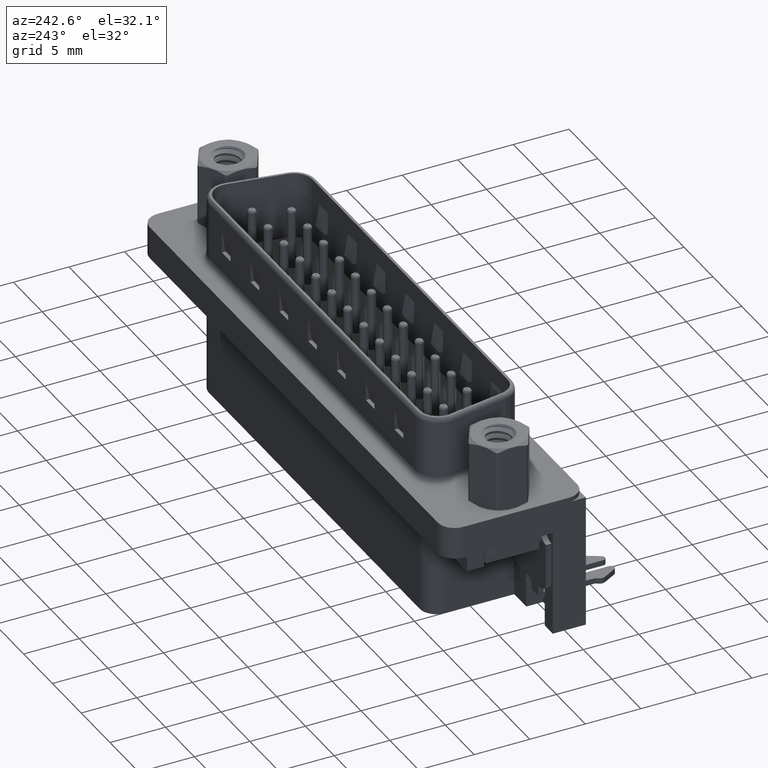
[diagram: clean part render]
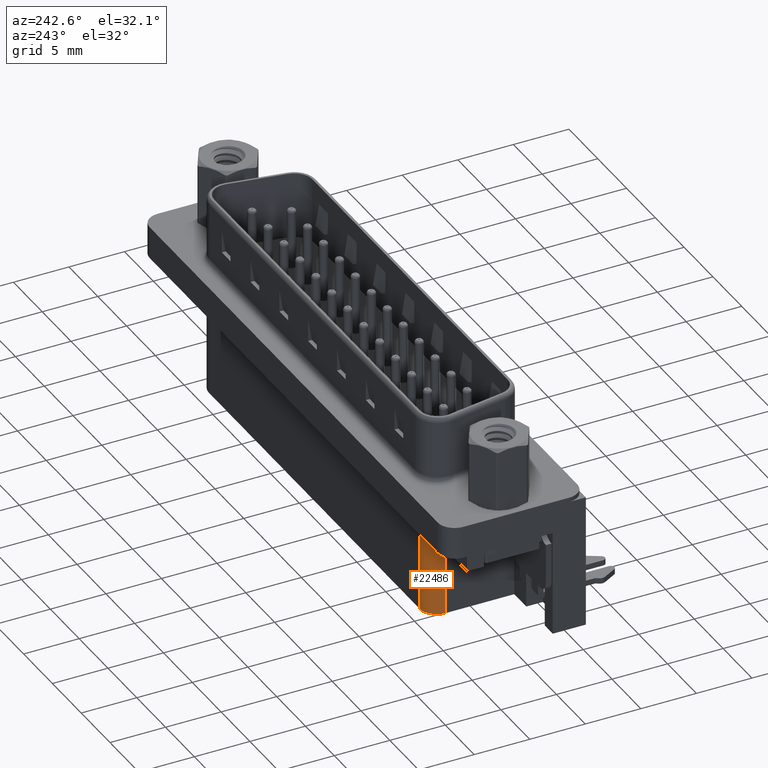
[diagram: same view with one face highlighted and labeled with its STEP entity id]
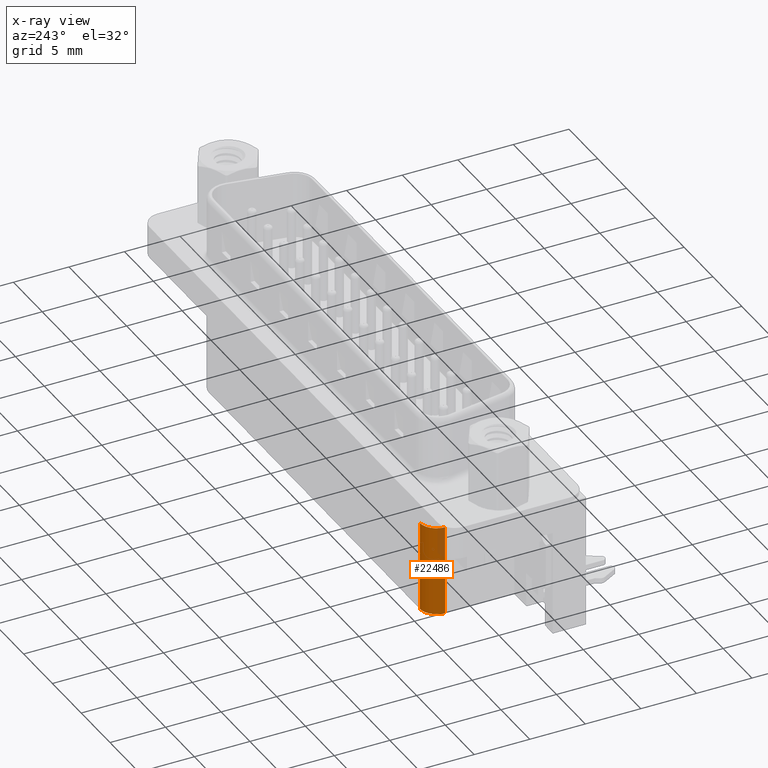
[diagram: x-ray of the same camera — body ghosted, the highlighted face saturated]
A machine part, auxiliary view. The second image highlights one B-rep face of the part: STEP entity #22486.
The next image is the same camera in x-ray: the body ghosted, the highlighted face saturated — about 10% of this face is hidden behind the body in this view.
In plain terms, the highlighted cylindrical surface (edge-blend (fillet) strip) has radius 1.5 mm, axis along (0, 0, 1).
Its self-contained STEP definition (entity closure, byte-faithful):
#2730 = ORIENTED_EDGE ( 'NONE', *, *, #11388, .T. ) ;
#2898 = VERTEX_POINT ( 'NONE', #8713 ) ;
#4891 = CARTESIAN_POINT ( 'NONE',  ( 5.199999999999982400, 4.424999999999990900, -3.899999999999999900 ) ) ;
#5151 = ORIENTED_EDGE ( 'NONE', *, *, #23731, .T. ) ;
#6341 = FACE_OUTER_BOUND ( 'NONE', #16315, .T. ) ;
#6712 = DIRECTION ( 'NONE',  ( 1.000000000000000000, 0.0000000000000000000, 0.0000000000000000000 ) ) ;
#7334 = EDGE_CURVE ( 'NONE', #14347, #27894, #22429, .T. ) ;
#8713 = CARTESIAN_POINT ( 'NONE',  ( 3.699999999999981500, 2.924999999999990500, -3.900000000000000800 ) ) ;
#8846 = AXIS2_PLACEMENT_3D ( 'NONE', #9244, #9421, #20624 ) ;
#9244 = CARTESIAN_POINT ( 'NONE',  ( 5.199999999999982400, 2.924999999999990500, -12.00000000000000000 ) ) ;
#9248 = DIRECTION ( 'NONE',  ( -0.0000000000000000000, -0.0000000000000000000, 1.000000000000000000 ) ) ;
#9421 = DIRECTION ( 'NONE',  ( -0.0000000000000000000, -0.0000000000000000000, 1.000000000000000000 ) ) ;
#10893 = ORIENTED_EDGE ( 'NONE', *, *, #7334, .F. ) ;
#11283 = CIRCLE ( 'NONE', #26173, 1.500000000000000400 ) ;
#11388 = EDGE_CURVE ( 'NONE', #2898, #23743, #11283, .T. ) ;
#12835 = ORIENTED_EDGE ( 'NONE', *, *, #23186, .F. ) ;
#13044 = LINE ( 'NONE', #15578, #22588 ) ;
#13184 = DIRECTION ( 'NONE',  ( 0.0000000000000000000, -0.0000000000000000000, -1.000000000000000000 ) ) ;
#13493 = CARTESIAN_POINT ( 'NONE',  ( 5.199999999999982400, 4.424999999999990900, -12.00000000000000000 ) ) ;
#14295 = AXIS2_PLACEMENT_3D ( 'NONE', #27469, #21715, #21823 ) ;
#14347 = VERTEX_POINT ( 'NONE', #16445 ) ;
#15578 = CARTESIAN_POINT ( 'NONE',  ( 3.699999999999981500, 2.924999999999990500, -12.00000000000000000 ) ) ;
#16315 = EDGE_LOOP ( 'NONE', ( #5151, #2730, #12835, #10893 ) ) ;
#16445 = CARTESIAN_POINT ( 'NONE',  ( 3.699999999999981500, 2.924999999999990500, -12.00000000000000000 ) ) ;
#19785 = CARTESIAN_POINT ( 'NONE',  ( 5.199999999999982400, 2.924999999999990500, -3.900000000000000800 ) ) ;
#19866 = CARTESIAN_POINT ( 'NONE',  ( 5.199999999999982400, 4.424999999999990900, -12.00000000000000000 ) ) ;
#20624 = DIRECTION ( 'NONE',  ( 1.000000000000000000, 0.0000000000000000000, 0.0000000000000000000 ) ) ;
#21715 = DIRECTION ( 'NONE',  ( 0.0000000000000000000, 0.0000000000000000000, -1.000000000000000000 ) ) ;
#21823 = DIRECTION ( 'NONE',  ( -1.000000000000000000, 0.0000000000000000000, 0.0000000000000000000 ) ) ;
#22271 = DIRECTION ( 'NONE',  ( -0.0000000000000000000, -0.0000000000000000000, 1.000000000000000000 ) ) ;
#22429 = CIRCLE ( 'NONE', #14295, 1.500000000000000400 ) ;
#22486 = ADVANCED_FACE ( 'NONE', ( #6341 ), #25363, .T. ) ;
#22588 = VECTOR ( 'NONE', #9248, 1000.000000000000000 ) ;
#23186 = EDGE_CURVE ( 'NONE', #27894, #23743, #27726, .T. ) ;
#23731 = EDGE_CURVE ( 'NONE', #14347, #2898, #13044, .T. ) ;
#23743 = VERTEX_POINT ( 'NONE', #4891 ) ;
#25363 = CYLINDRICAL_SURFACE ( 'NONE', #8846, 1.500000000000000400 ) ;
#26173 = AXIS2_PLACEMENT_3D ( 'NONE', #19785, #13184, #6712 ) ;
#27059 = VECTOR ( 'NONE', #22271, 1000.000000000000000 ) ;
#27469 = CARTESIAN_POINT ( 'NONE',  ( 5.199999999999982400, 2.924999999999990500, -12.00000000000000000 ) ) ;
#27726 = LINE ( 'NONE', #13493, #27059 ) ;
#27894 = VERTEX_POINT ( 'NONE', #19866 ) ;